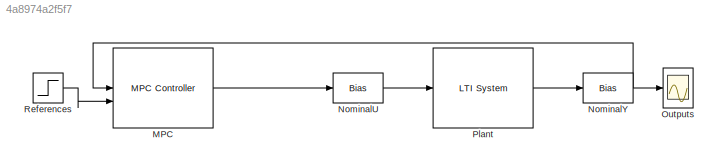
MODEL slx_4a8974a2f5f7
KIND model
CONFIG AbsTol = auto
CONFIG EnableMultiTasking = off
CONFIG FixedStep = auto
CONFIG MaxStep = auto
CONFIG MinStep = auto
CONFIG RelTol = 1e-3
CONFIG SampleTimeConstraint = Unconstrained
CONFIG SolverName = VariableStepAuto
CONFIG StartTime = 0.0
CONFIG StopTime = 10.0
BLOCK [Reference] MPC  REF=mpclib/MPC Controller  (lib defined in mdl_ae329e0e0455)
  SCDEnableBlockLinearizationSpecification = on
  SourceBlock = mpclib/MPC Controller
  SourceType = MPC
BLOCK [Bias] NominalU
BLOCK [Bias] NominalY
  Bias = [0;0;0]
BLOCK [Scope] Outputs
  Floating = off
  NumInputPorts = 1
BLOCK [Reference] Plant  REF=cstblocks/LTI System
  SourceBlock = cstblocks/LTI System
  SourceType = LTI Block
BLOCK [Step] References
  After = [1;1;1]
  Before = [0;0;0]
LINE MPC:1 -> NominalU:1
LINE NominalU:1 -> Plant:1
NET NominalY:1 -> MPC:1, Outputs:1
LINE Plant:1 -> NominalY:1
LINE References:1 -> MPC:2
note: NET lines group one-source signal fan-out (src -> all destinations, sorted); 1:1 wires keep LINE
